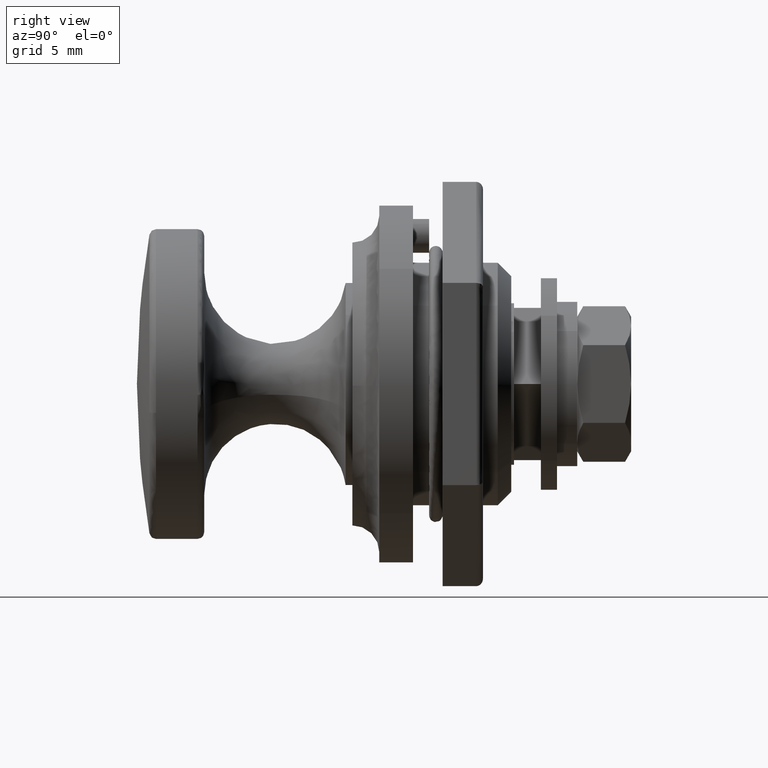
[diagram: clean part render]
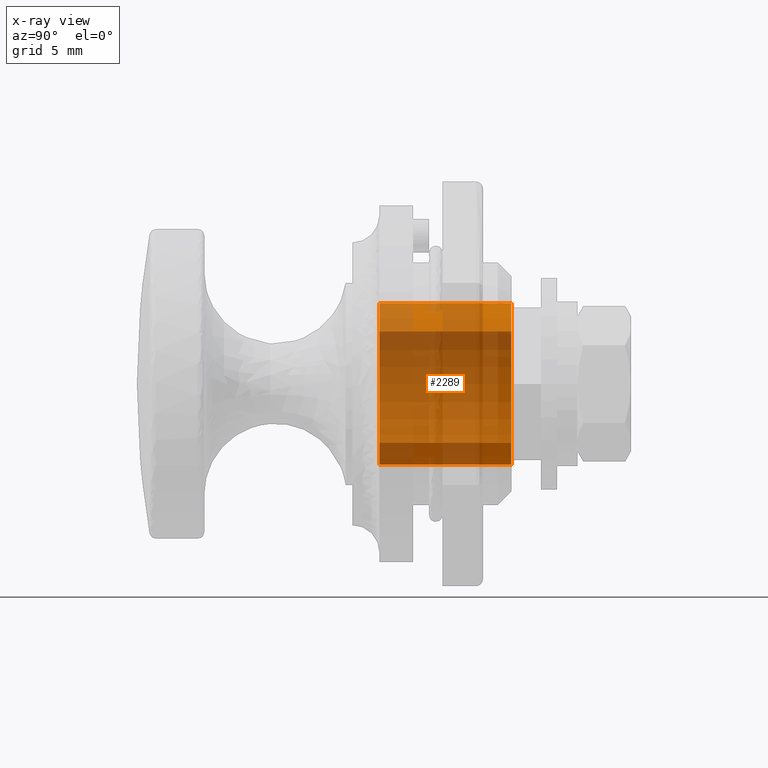
[diagram: x-ray — body ghosted, one internal face saturated and labeled with its STEP entity id]
A machine part, right view, then the same camera in x-ray: the body is ghosted and one INTERNAL B-rep face — a face not visible from any outside direction — is saturated and labeled: STEP entity #2289.
In plain terms, the highlighted face is a freeform B-spline surface patch.
Its self-contained STEP definition (entity closure, byte-faithful):
#2120=CARTESIAN_POINT('',(7.544999999999999,-4.581333857642943,3.874452230292280));
#2121=CARTESIAN_POINT('',(7.544999999999997,-4.470448699389239,4.005568037023872));
#2122=CARTESIAN_POINT('',(7.544999999999997,-4.352246226073870,4.130127454162660));
#2123=CARTESIAN_POINT('',(7.544999999999996,-0.222118771911210,8.482373680236531));
#2124=CARTESIAN_POINT('',(7.544999999999997,4.130127454162660,4.352246226073870));
#2125=CARTESIAN_POINT('',(7.544999999999996,8.482373680236531,0.222118771911210));
#2126=CARTESIAN_POINT('',(7.544999999999997,4.352246226073870,-4.130127454162660));
#2127=CARTESIAN_POINT('',(7.544999999999996,0.222118771911210,-8.482373680236531));
#2128=CARTESIAN_POINT('',(7.544999999999997,-4.130127454162660,-4.352246226073870));
#2129=CARTESIAN_POINT('',(-2.751124999999899,-4.581333857642943,3.874452230292280));
#2130=CARTESIAN_POINT('',(-2.751124999999898,-4.470448699389239,4.005568037023872));
#2131=CARTESIAN_POINT('',(-2.751124999999898,-4.352246226073870,4.130127454162660));
#2132=CARTESIAN_POINT('',(-2.751124999999897,-0.222118771911210,8.482373680236531));
#2133=CARTESIAN_POINT('',(-2.751124999999898,4.130127454162660,4.352246226073870));
#2134=CARTESIAN_POINT('',(-2.751124999999897,8.482373680236531,0.222118771911210));
#2135=CARTESIAN_POINT('',(-2.751124999999898,4.352246226073870,-4.130127454162660));
#2136=CARTESIAN_POINT('',(-2.751124999999897,0.222118771911210,-8.482373680236531));
#2137=CARTESIAN_POINT('',(-2.751124999999898,-4.130127454162660,-4.352246226073870));
#2145=(BOUNDED_SURFACE()B_SPLINE_SURFACE(2,1,((#2120,#2129),(#2121,#2130),(#2122,#2131),(#2123,#2132),(#2124,#2133),(#2125,#2134),(#2126,#2135),(#2127,#2136),(#2128,#2137)),.UNSPECIFIED.,.F.,.F.,.U.)B_SPLINE_SURFACE_WITH_KNOTS((3,2,2,2,3),(2,2),(0.0,0.397645019878185,10.338770516832801,20.279896013787411,30.221021510742020),(0.0,10.296124999999900),.UNSPECIFIED.)GEOMETRIC_REPRESENTATION_ITEM()RATIONAL_B_SPLINE_SURFACE(((0.977505800795127,0.977505800795127),(0.988284271247462,0.988284271247462),(1.0,1.0),(0.707106781186548,0.707106781186548),(1.0,1.0),(0.707106781186548,0.707106781186548),(1.0,1.0),(0.707106781186548,0.707106781186548),(1.0,1.0)))REPRESENTATION_ITEM('')SURFACE());
#2146=CARTESIAN_POINT('',(-2.500000000000198,-4.581333934078922,3.874452311248317));
#2147=VERTEX_POINT('',#2146);
#2148=CARTESIAN_POINT('',(-2.499999999999901,0.0,6.000000000000201));
#2149=VERTEX_POINT('',#2148);
#2150=CARTESIAN_POINT('',(-2.500000000000198,-4.581333934078922,3.874452311248317));
#2151=CARTESIAN_POINT('',(-2.500000000000187,-4.370967412695164,4.123234864151407));
#2152=CARTESIAN_POINT('',(-2.500000000000154,-4.005684774029366,4.489893890888580));
#2153=CARTESIAN_POINT('',(-2.500000000000132,-3.371447421505208,4.980487608256652));
#2154=CARTESIAN_POINT('',(-2.500000000000050,-2.670917645667223,5.400070011950751));
#2155=CARTESIAN_POINT('',(-2.500000000000029,-1.862314134801717,5.726299174420315));
#2156=CARTESIAN_POINT('',(-2.499999999999950,-0.950242077677384,5.947135884649554));
#2157=CARTESIAN_POINT('',(-2.499999999999961,-0.352952267792463,6.000032558522152));
#2158=CARTESIAN_POINT('',(-2.499999999999901,0.0,6.000000000000201));
#2159=B_SPLINE_CURVE_WITH_KNOTS('',3,(#2150,#2151,#2152,#2153,#2154,#2155,#2156,#2157,#2158),.UNSPECIFIED.,.F.,.U.,(4,1,1,1,1,1,4),(7.115733E-009,0.977402713425802,1.547557448781746,2.402790671685263,3.420909859597625,4.153967334548920,5.212819778650370),.UNSPECIFIED.);
#2160=EDGE_CURVE('',#2147,#2149,#2159,.T.);
#2161=ORIENTED_EDGE('',*,*,#2160,.T.);
#2162=CARTESIAN_POINT('',(-2.499999999999901,6.000000000000185,-0.000000448788581));
#2163=VERTEX_POINT('',#2162);
#2164=CARTESIAN_POINT('',(-2.499999999999901,0.0,6.000000000000201));
#2165=CARTESIAN_POINT('',(-2.499999999999900,0.282252446214081,6.000013459098858));
#2166=CARTESIAN_POINT('',(-2.499999999999903,0.797663101315769,5.963556501002922));
#2167=CARTESIAN_POINT('',(-2.499999999999896,1.653160249207598,5.790693024308190));
#2168=CARTESIAN_POINT('',(-2.499999999999909,2.568574636323403,5.459993019367222));
#2169=CARTESIAN_POINT('',(-2.499999999999888,3.536060500330447,4.892170401488634));
#2170=CARTESIAN_POINT('',(-2.499999999999923,4.304608426846374,4.216732660309915));
#2171=CARTESIAN_POINT('',(-2.499999999999889,4.970216783354539,3.410761046563084));
#2172=CARTESIAN_POINT('',(-2.499999999999905,5.458311356386990,2.567372074243844));
#2173=CARTESIAN_POINT('',(-2.499999999999900,5.755187620603652,1.745469772923392));
#2174=CARTESIAN_POINT('',(-2.499999999999903,5.948459735711349,0.920370589907443));
#2175=CARTESIAN_POINT('',(-2.499999999999898,6.000052052075012,0.380431425680491));
#2176=CARTESIAN_POINT('',(-2.499999999999901,6.000000000000185,-0.000000448788581));
#2177=B_SPLINE_CURVE_WITH_KNOTS('',3,(#2164,#2165,#2166,#2167,#2168,#2169,#2170,#2171,#2172,#2173,#2174,#2175,#2176),.UNSPECIFIED.,.F.,.U.,(4,1,1,1,1,1,1,1,1,1,4),(0.000000021645963,0.846757070882006,1.546250131417157,2.613907616072039,3.755195129390703,4.896468960473538,5.669600665595517,6.884516704675926,7.804907626809178,8.283511867145410,9.424792998456386),.UNSPECIFIED.);
#2178=EDGE_CURVE('',#2149,#2163,#2177,.T.);
#2179=ORIENTED_EDGE('',*,*,#2178,.T.);
#2180=CARTESIAN_POINT('',(-2.499999999999901,0.0,-6.000000000000201));
#2181=VERTEX_POINT('',#2180);
#2182=CARTESIAN_POINT('',(-2.499999999999901,6.000000000000185,-0.000000448788581));
#2183=CARTESIAN_POINT('',(-2.499999999999893,6.000054656066838,-0.404973778346396));
#2184=CARTESIAN_POINT('',(-2.499999999999914,5.916453243004718,-1.227174272248405));
#2185=CARTESIAN_POINT('',(-2.499999999999888,5.603470125208004,-2.215231648184933));
#2186=CARTESIAN_POINT('',(-2.499999999999922,5.197046538701024,-3.028720283310509));
#2187=CARTESIAN_POINT('',(-2.499999999999866,4.795651298675780,-3.633475781548439));
#2188=CARTESIAN_POINT('',(-2.499999999999930,4.231612857060247,-4.283328081783930));
#2189=CARTESIAN_POINT('',(-2.499999999999891,3.578754886893077,-4.846502046734456));
#2190=CARTESIAN_POINT('',(-2.499999999999899,2.878329247482899,-5.281025867356509));
#2191=CARTESIAN_POINT('',(-2.499999999999903,2.176569786311656,-5.607675777458137));
#2192=CARTESIAN_POINT('',(-2.499999999999899,1.251685311535606,-5.906998800476496));
#2193=CARTESIAN_POINT('',(-2.499999999999901,0.478610969534288,-6.000100286150707));
#2194=CARTESIAN_POINT('',(-2.499999999999901,0.0,-6.000000000000201));
#2195=B_SPLINE_CURVE_WITH_KNOTS('',3,(#2182,#2183,#2184,#2185,#2186,#2187,#2188,#2189,#2190,#2191,#2192,#2193,#2194),.UNSPECIFIED.,.F.,.U.,(4,1,1,1,1,1,1,1,1,1,4),(0.000000021687706,1.214913937170573,2.466645716864153,3.092512064032417,3.939271096175729,4.638775573430851,5.669600360995487,6.516359963371942,7.105410177822032,7.988985873257731,9.424792492566265),.UNSPECIFIED.);
#2196=EDGE_CURVE('',#2163,#2181,#2195,.T.);
#2197=ORIENTED_EDGE('',*,*,#2196,.T.);
#2198=CARTESIAN_POINT('',(-2.499999999999817,-4.130127369684345,-4.352246151777964));
#2199=VERTEX_POINT('',#2198);
#2200=CARTESIAN_POINT('',(-2.499999999999901,0.0,-6.000000000000201));
#2201=CARTESIAN_POINT('',(-2.499999999999893,-0.462660375660607,-6.000102472205942));
#2202=CARTESIAN_POINT('',(-2.499999999999860,-1.162513094698313,-5.918626488819816));
#2203=CARTESIAN_POINT('',(-2.499999999999886,-2.084719575375053,-5.642759190145889));
#2204=CARTESIAN_POINT('',(-2.499999999999838,-2.715641470224467,-5.364632167624413));
#2205=CARTESIAN_POINT('',(-2.499999999999829,-3.423546288989306,-4.951862358590754));
#2206=CARTESIAN_POINT('',(-2.499999999999806,-3.863401086826676,-4.605420556907205));
#2207=CARTESIAN_POINT('',(-2.499999999999817,-4.130127369684345,-4.352246151777964));
#2208=B_SPLINE_CURVE_WITH_KNOTS('',3,(#2200,#2201,#2202,#2203,#2204,#2205,#2206,#2207),.UNSPECIFIED.,.F.,.U.,(4,1,1,1,1,4),(5.064114E-009,1.387948307185292,2.099716026391699,2.882659565069684,3.452075581664690,4.555315972542138),.UNSPECIFIED.);
#2209=EDGE_CURVE('',#2181,#2199,#2208,.T.);
#2210=ORIENTED_EDGE('',*,*,#2209,.T.);
#2211=CARTESIAN_POINT('',(7.299999999999999,-4.130127369771186,-4.352246151695555));
#2212=VERTEX_POINT('',#2211);
#2213=CARTESIAN_POINT('',(7.299999999999999,-4.130127369771186,-4.352246151695555));
#2214=CARTESIAN_POINT('',(-2.499999999999817,-4.130127369684345,-4.352246151777964));
#2215=QUASI_UNIFORM_CURVE('',1,(#2213,#2214),.UNSPECIFIED.,.F.,.U.);
#2216=EDGE_CURVE('',#2212,#2199,#2215,.T.);
#2217=ORIENTED_EDGE('',*,*,#2216,.F.);
#2218=CARTESIAN_POINT('',(7.300000000000000,0.0,-6.000000000000201));
#2219=VERTEX_POINT('',#2218);
#2220=CARTESIAN_POINT('',(7.300000000000000,0.0,-6.000000000000201));
#2221=CARTESIAN_POINT('',(7.299999999999998,-0.403337681387470,-6.000049487924687));
#2222=CARTESIAN_POINT('',(7.300000000000019,-1.115087195879544,-5.927957411826476));
#2223=CARTESIAN_POINT('',(7.299999999999991,-2.018741800785643,-5.669282602060160));
#2224=CARTESIAN_POINT('',(7.299999999999982,-2.813448862151600,-5.321774401380611));
#2225=CARTESIAN_POINT('',(7.300000000000063,-3.502837700348923,-4.897572851037837));
#2226=CARTESIAN_POINT('',(7.299999999999973,-3.949426689779461,-4.523729485368681));
#2227=CARTESIAN_POINT('',(7.299999999999999,-4.130127369771186,-4.352246151695555));
#2228=B_SPLINE_CURVE_WITH_KNOTS('',3,(#2220,#2221,#2222,#2223,#2224,#2225,#2226,#2227),.UNSPECIFIED.,.F.,.U.,(4,1,1,1,1,4),(5.063183E-009,1.210006041233610,2.135310223018766,2.811483030710287,3.807961902450264,4.555315972661858),.UNSPECIFIED.);
#2229=EDGE_CURVE('',#2219,#2212,#2228,.T.);
#2230=ORIENTED_EDGE('',*,*,#2229,.F.);
#2231=CARTESIAN_POINT('',(7.300000000000000,6.000000000000185,-0.000000448788581));
#2232=VERTEX_POINT('',#2231);
#2233=CARTESIAN_POINT('',(7.300000000000000,6.000000000000185,-0.000000448788581));
#2234=CARTESIAN_POINT('',(7.300000000000025,6.000108752186764,-0.466342732490070));
#2235=CARTESIAN_POINT('',(7.299999999999988,5.919459249744033,-1.153513419811636));
#2236=CARTESIAN_POINT('',(7.300000000000023,5.650272914149519,-2.060803644462720));
#2237=CARTESIAN_POINT('',(7.299999999999967,5.347742720010408,-2.760650252483315));
#2238=CARTESIAN_POINT('',(7.300000000000066,4.972669858333899,-3.382076145774598));
#2239=CARTESIAN_POINT('',(7.300000000000011,4.498392521712223,-3.993672757974648));
#2240=CARTESIAN_POINT('',(7.299999999999901,4.029877091485046,-4.465072002872543));
#2241=CARTESIAN_POINT('',(7.300000000000105,3.432388143677641,-4.937277422699392));
#2242=CARTESIAN_POINT('',(7.299999999999918,2.784252735317814,-5.339412481911397));
#2243=CARTESIAN_POINT('',(7.300000000000041,1.925643169999204,-5.710609723816451));
#2244=CARTESIAN_POINT('',(7.299999999999980,0.981744142121701,-5.947024949069180));
#2245=CARTESIAN_POINT('',(7.300000000000013,0.319068118354096,-6.000018269851076));
#2246=CARTESIAN_POINT('',(7.300000000000000,0.0,-6.000000000000201));
#2247=B_SPLINE_CURVE_WITH_KNOTS('',3,(#2233,#2234,#2235,#2236,#2237,#2238,#2239,#2240,#2241,#2242,#2243,#2244,#2245,#2246),.UNSPECIFIED.,.F.,.U.,(4,1,1,1,1,1,1,1,1,1,1,4),(0.000000021687706,1.398992657051971,2.061672933369455,2.834803820521763,3.681567377317340,4.233798368850111,5.154171520982508,5.669600360995487,6.516359963371942,7.436750539280797,8.467588387812736,9.424792492566265),.UNSPECIFIED.);
#2248=EDGE_CURVE('',#2232,#2219,#2247,.T.);
#2249=ORIENTED_EDGE('',*,*,#2248,.F.);
#2250=CARTESIAN_POINT('',(7.300000000000000,0.0,6.000000000000201));
#2251=VERTEX_POINT('',#2250);
#2252=CARTESIAN_POINT('',(7.300000000000000,0.0,6.000000000000201));
#2253=CARTESIAN_POINT('',(7.300000000000006,0.466338534842100,6.000104195847999));
#2254=CARTESIAN_POINT('',(7.299999999999990,1.288506248229918,5.903640994724909));
#2255=CARTESIAN_POINT('',(7.300000000000019,2.328623902913297,5.556478466384045));
#2256=CARTESIAN_POINT('',(7.299999999999979,3.038270881681483,5.188250922192193));
#2257=CARTESIAN_POINT('',(7.299999999999950,3.640851149590843,4.785628489703486));
#2258=CARTESIAN_POINT('',(7.300000000000202,4.157243310243823,4.348404004386086));
#2259=CARTESIAN_POINT('',(7.299999999999873,4.689058889524948,3.768830629312048));
#2260=CARTESIAN_POINT('',(7.300000000000040,5.115933642783070,3.166643398317625));
#2261=CARTESIAN_POINT('',(7.300000000000007,5.478904624777424,2.482527411206239));
#2262=CARTESIAN_POINT('',(7.299999999999988,5.733554839283424,1.816289000693687));
#2263=CARTESIAN_POINT('',(7.300000000000009,5.942603739515326,0.981730354726954));
#2264=CARTESIAN_POINT('',(7.300000000000003,6.000050139061511,0.380430522585751));
#2265=CARTESIAN_POINT('',(7.300000000000000,6.000000000000185,-0.000000448788581));
#2266=B_SPLINE_CURVE_WITH_KNOTS('',3,(#2252,#2253,#2254,#2255,#2256,#2257,#2258,#2259,#2260,#2261,#2262,#2263,#2264,#2265),.UNSPECIFIED.,.F.,.U.,(4,1,1,1,1,1,1,1,1,1,1,4),(0.000000021645963,1.398992732150691,2.466645849227942,3.276589938474321,3.792015713485275,4.638775822576807,5.301442555784074,6.148203205731548,6.847699805451510,7.620829194712809,8.283511867145410,9.424792998456386),.UNSPECIFIED.);
#2267=EDGE_CURVE('',#2251,#2232,#2266,.T.);
#2268=ORIENTED_EDGE('',*,*,#2267,.F.);
#2269=CARTESIAN_POINT('',(7.299999999999999,-4.581333934179387,3.874452311129522));
#2270=VERTEX_POINT('',#2269);
#2271=CARTESIAN_POINT('',(7.299999999999999,-4.581333934179387,3.874452311129522));
#2272=CARTESIAN_POINT('',(7.300000000000010,-4.318395093128139,4.185450933801259));
#2273=CARTESIAN_POINT('',(7.299999999999998,-3.738669567070702,4.744086005450305));
#2274=CARTESIAN_POINT('',(7.299999999999959,-2.725983986705332,5.388633521483149));
#2275=CARTESIAN_POINT('',(7.300000000000041,-1.708511711881769,5.783134262512466));
#2276=CARTESIAN_POINT('',(7.299999999999944,-0.787349690767042,5.966788152525733));
#2277=CARTESIAN_POINT('',(7.300000000000076,-0.244349782412406,6.000004835797146));
#2278=CARTESIAN_POINT('',(7.300000000000000,0.0,6.000000000000201));
#2279=B_SPLINE_CURVE_WITH_KNOTS('',3,(#2271,#2272,#2273,#2274,#2275,#2276,#2277,#2278),.UNSPECIFIED.,.F.,.U.,(4,1,1,1,1,4),(7.116370E-009,1.221754402563786,2.402790671757064,3.583812599300308,4.479768554945872,5.212819778805950),.UNSPECIFIED.);
#2280=EDGE_CURVE('',#2270,#2251,#2279,.T.);
#2281=ORIENTED_EDGE('',*,*,#2280,.F.);
#2282=CARTESIAN_POINT('',(7.299999999999999,-4.581333934179387,3.874452311129522));
#2283=CARTESIAN_POINT('',(-2.500000000000198,-4.581333934078922,3.874452311248317));
#2284=QUASI_UNIFORM_CURVE('',1,(#2282,#2283),.UNSPECIFIED.,.F.,.U.);
#2285=EDGE_CURVE('',#2270,#2147,#2284,.T.);
#2286=ORIENTED_EDGE('',*,*,#2285,.T.);
#2287=EDGE_LOOP('',(#2161,#2179,#2197,#2210,#2217,#2230,#2249,#2268,#2281,#2286));
#2288=FACE_OUTER_BOUND('',#2287,.T.);
#2289=ADVANCED_FACE('',(#2288),#2145,.F.);